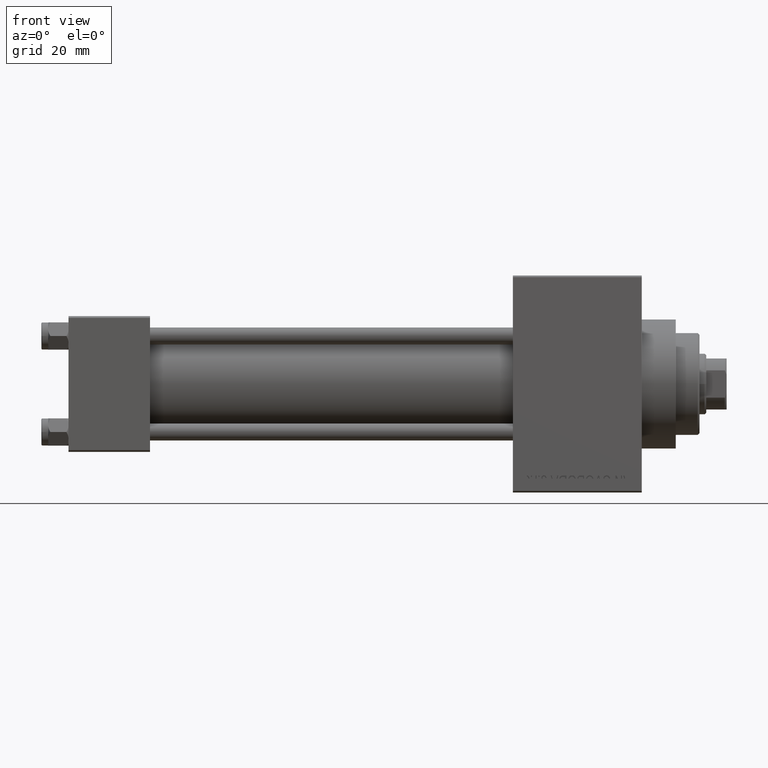
[diagram: clean part render]
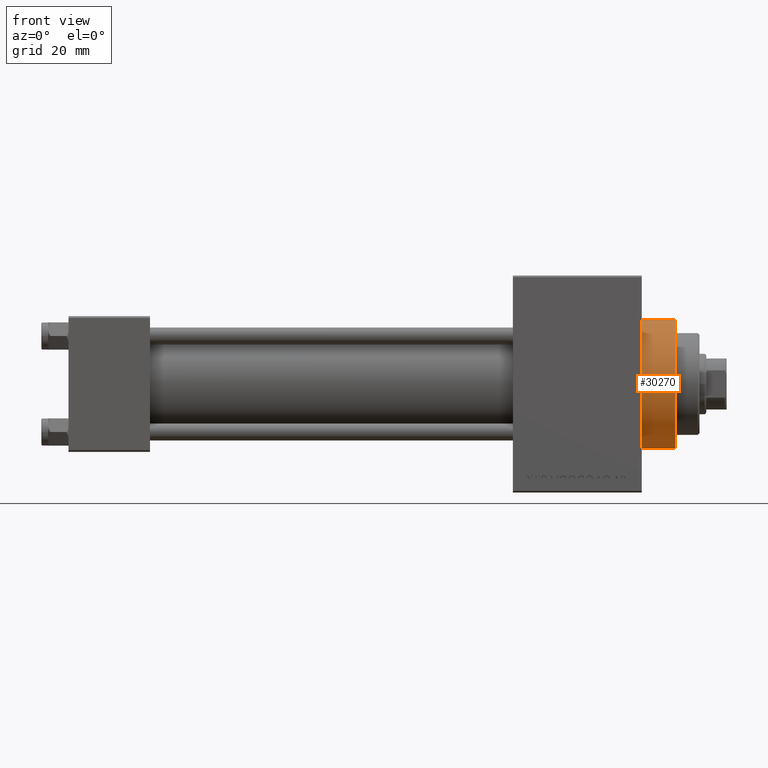
[diagram: same view with one face highlighted and labeled with its STEP entity id]
A machine part, front view. The second image highlights one B-rep face of the part: STEP entity #30270.
In plain terms, the highlighted cylindrical surface (partial cylindrical patch) has radius 19 mm, axis along (-1, -0, -0).
Its self-contained STEP definition (entity closure, byte-faithful):
#87 = EDGE_LOOP ( 'NONE', ( #35830, #45679, #30567, #11943 ) ) ;
#2494 = VERTEX_POINT ( 'NONE', #17287 ) ;
#4664 = FACE_OUTER_BOUND ( 'NONE', #87, .T. ) ;
#5197 = DIRECTION ( 'NONE',  ( 1.000000000000000000, 0.000000000000000000, 0.000000000000000000 ) ) ;
#6746 = DIRECTION ( 'NONE',  ( -1.000000000000000000, -0.000000000000000000, -0.000000000000000000 ) ) ;
#7537 = CARTESIAN_POINT ( 'NONE',  ( 179.0000000000000284, 0.000000000000000000, 0.000000000000000000 ) ) ;
#7982 = EDGE_CURVE ( 'NONE', #15875, #2494, #17942, .T. ) ;
#9218 = DIRECTION ( 'NONE',  ( -1.000000000000000000, -0.000000000000000000, -0.000000000000000000 ) ) ;
#9713 = CARTESIAN_POINT ( 'NONE',  ( 169.0000000000000000, 0.000000000000000000, 0.000000000000000000 ) ) ;
#11943 = ORIENTED_EDGE ( 'NONE', *, *, #26646, .T. ) ;
#14639 = VECTOR ( 'NONE', #6746, 1000.000000000000000 ) ;
#14865 = CARTESIAN_POINT ( 'NONE',  ( 179.0000000000000284, 0.000000000000000000, 19.00000000000000000 ) ) ;
#14948 = VERTEX_POINT ( 'NONE', #41092 ) ;
#15875 = VERTEX_POINT ( 'NONE', #14865 ) ;
#17268 = CIRCLE ( 'NONE', #36267, 19.00000000000000000 ) ;
#17287 = CARTESIAN_POINT ( 'NONE',  ( 169.0000000000000000, 0.000000000000000000, 19.00000000000000000 ) ) ;
#17288 = LINE ( 'NONE', #23950, #44953 ) ;
#17942 = LINE ( 'NONE', #35792, #14639 ) ;
#18688 = CARTESIAN_POINT ( 'NONE',  ( 169.0000000000000000, 2.326828918379970970E-15, -19.00000000000000000 ) ) ;
#20221 = VERTEX_POINT ( 'NONE', #18688 ) ;
#20376 = CIRCLE ( 'NONE', #46981, 19.00000000000000000 ) ;
#21268 = DIRECTION ( 'NONE',  ( 0.000000000000000000, 0.000000000000000000, -1.000000000000000000 ) ) ;
#22523 = DIRECTION ( 'NONE',  ( -1.000000000000000000, -0.000000000000000000, -0.000000000000000000 ) ) ;
#23950 = CARTESIAN_POINT ( 'NONE',  ( 179.0000000000000284, 2.326828918379970970E-15, -19.00000000000000000 ) ) ;
#26646 = EDGE_CURVE ( 'NONE', #2494, #20221, #17268, .T. ) ;
#29181 = CYLINDRICAL_SURFACE ( 'NONE', #42298, 19.00000000000000000 ) ;
#30270 = ADVANCED_FACE ( 'NONE', ( #4664 ), #29181, .T. ) ;
#30567 = ORIENTED_EDGE ( 'NONE', *, *, #7982, .T. ) ;
#33999 = EDGE_CURVE ( 'NONE', #15875, #14948, #20376, .T. ) ;
#34713 = DIRECTION ( 'NONE',  ( 0.000000000000000000, 0.000000000000000000, -1.000000000000000000 ) ) ;
#35792 = CARTESIAN_POINT ( 'NONE',  ( 179.0000000000000284, 0.000000000000000000, 19.00000000000000000 ) ) ;
#35830 = ORIENTED_EDGE ( 'NONE', *, *, #45689, .F. ) ;
#36267 = AXIS2_PLACEMENT_3D ( 'NONE', #9713, #5197, #34713 ) ;
#40853 = DIRECTION ( 'NONE',  ( 0.000000000000000000, 0.000000000000000000, 1.000000000000000000 ) ) ;
#41092 = CARTESIAN_POINT ( 'NONE',  ( 179.0000000000000284, 2.326828918379970970E-15, -19.00000000000000000 ) ) ;
#42298 = AXIS2_PLACEMENT_3D ( 'NONE', #7537, #22523, #40853 ) ;
#43406 = DIRECTION ( 'NONE',  ( 1.000000000000000000, 0.000000000000000000, 0.000000000000000000 ) ) ;
#43644 = CARTESIAN_POINT ( 'NONE',  ( 179.0000000000000284, 0.000000000000000000, 0.000000000000000000 ) ) ;
#44953 = VECTOR ( 'NONE', #9218, 1000.000000000000000 ) ;
#45679 = ORIENTED_EDGE ( 'NONE', *, *, #33999, .F. ) ;
#45689 = EDGE_CURVE ( 'NONE', #14948, #20221, #17288, .T. ) ;
#46981 = AXIS2_PLACEMENT_3D ( 'NONE', #43644, #43406, #21268 ) ;